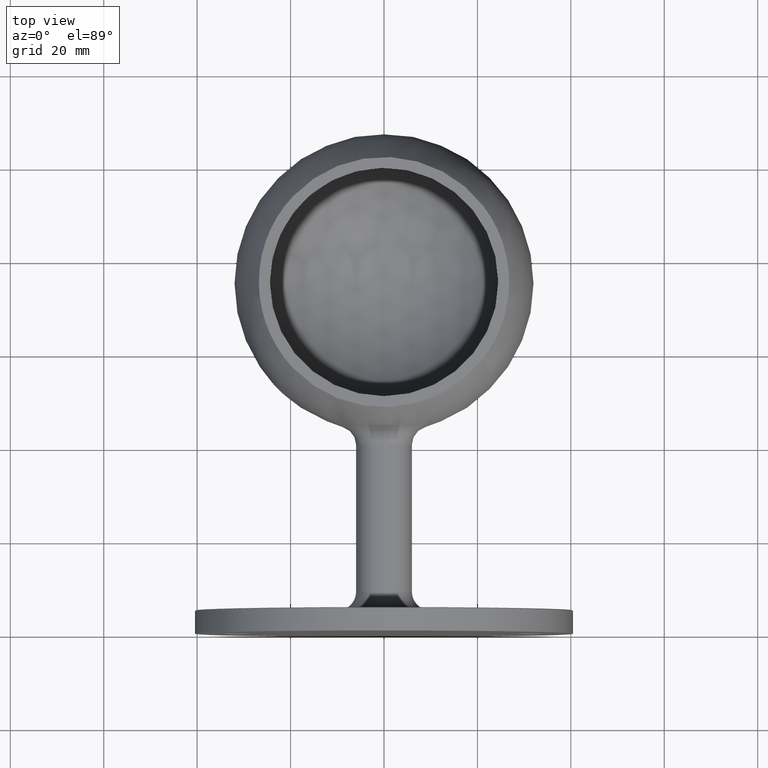
[diagram: clean part render]
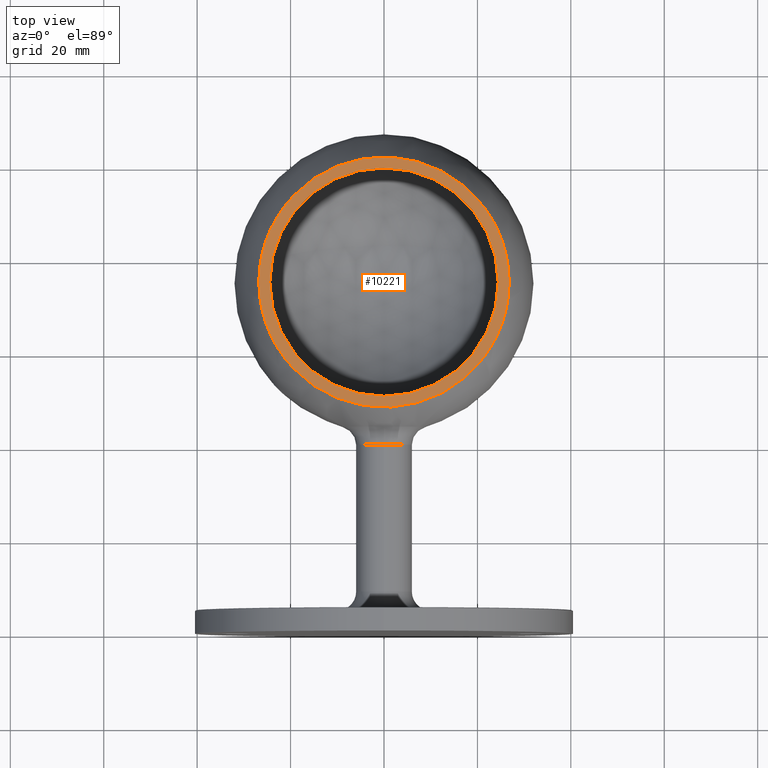
[diagram: same view with one face highlighted and labeled with its STEP entity id]
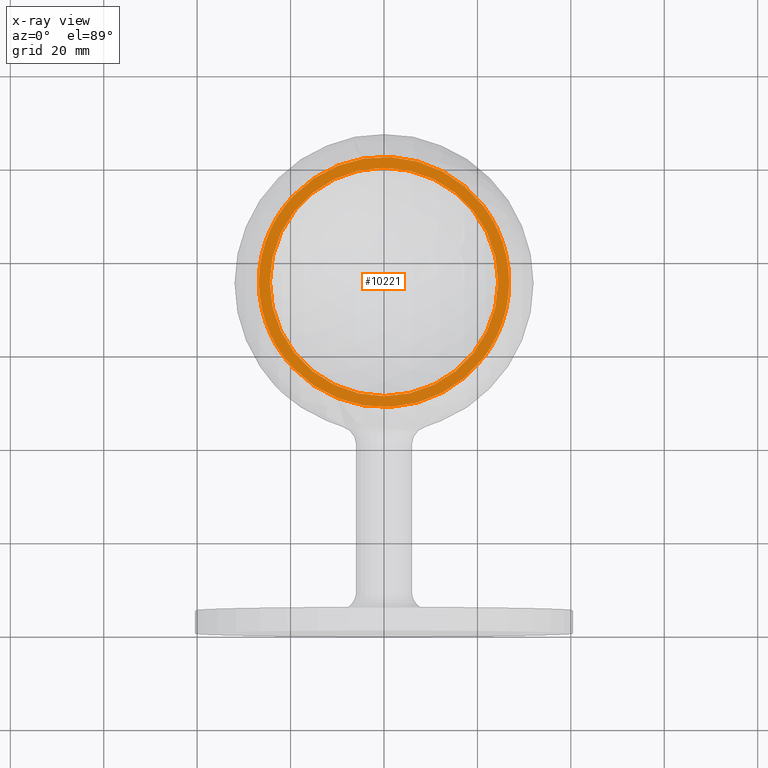
[diagram: x-ray of the same camera — body ghosted, the highlighted face saturated]
A machine part, top view. The second image highlights one B-rep face of the part: STEP entity #10221.
The next image is the same camera in x-ray: the body ghosted, the highlighted face saturated — about 0% of this face is hidden behind the body in this view.
In plain terms, the highlighted planar face has unit normal (0, 0, -1).
Its self-contained STEP definition (entity closure, byte-faithful):
#835 = PLANE ( 'NONE',  #4692 ) ;
#938 = CARTESIAN_POINT ( 'NONE',  ( 26.79085664923762522, 75.00000000000000000, 17.50000000000000711 ) ) ;
#1488 = DIRECTION ( 'NONE',  ( 1.000000000000000000, 0.000000000000000000, 0.000000000000000000 ) ) ;
#2020 = ORIENTED_EDGE ( 'NONE', *, *, #9167, .T. ) ;
#2376 = AXIS2_PLACEMENT_3D ( 'NONE', #9119, #10003, #1488 ) ;
#2449 = CIRCLE ( 'NONE', #2376, 26.79085664923762522 ) ;
#2799 = AXIS2_PLACEMENT_3D ( 'NONE', #6616, #4006, #10887 ) ;
#3137 = VERTEX_POINT ( 'NONE', #8722 ) ;
#4006 = DIRECTION ( 'NONE',  ( -0.000000000000000000, -0.000000000000000000, 1.000000000000000000 ) ) ;
#4692 = AXIS2_PLACEMENT_3D ( 'NONE', #7633, #4994, #9186 ) ;
#4889 = VERTEX_POINT ( 'NONE', #938 ) ;
#4994 = DIRECTION ( 'NONE',  ( 0.000000000000000000, 0.000000000000000000, -1.000000000000000000 ) ) ;
#5041 = EDGE_LOOP ( 'NONE', ( #2020 ) ) ;
#5228 = ORIENTED_EDGE ( 'NONE', *, *, #5830, .F. ) ;
#5830 = EDGE_CURVE ( 'NONE', #3137, #3137, #7685, .T. ) ;
#6616 = CARTESIAN_POINT ( 'NONE',  ( 0.000000000000000000, 75.00000000000000000, 17.50000000000000000 ) ) ;
#7633 = CARTESIAN_POINT ( 'NONE',  ( 0.000000000000000000, 99.45000000000000284, 17.50000000000000355 ) ) ;
#7685 = CIRCLE ( 'NONE', #2799, 24.44999999999999929 ) ;
#8722 = CARTESIAN_POINT ( 'NONE',  ( 24.44999999999999929, 75.00000000000000000, 17.50000000000000000 ) ) ;
#9119 = CARTESIAN_POINT ( 'NONE',  ( 0.000000000000000000, 75.00000000000000000, 17.50000000000000711 ) ) ;
#9167 = EDGE_CURVE ( 'NONE', #4889, #4889, #2449, .T. ) ;
#9186 = DIRECTION ( 'NONE',  ( -1.000000000000000000, 0.000000000000000000, -0.000000000000000000 ) ) ;
#9357 = FACE_OUTER_BOUND ( 'NONE', #5041, .T. ) ;
#9748 = FACE_BOUND ( 'NONE', #11088, .T. ) ;
#10003 = DIRECTION ( 'NONE',  ( -0.000000000000000000, -0.000000000000000000, 1.000000000000000000 ) ) ;
#10221 = ADVANCED_FACE ( 'NONE', ( #9748, #9357 ), #835, .F. ) ;
#10887 = DIRECTION ( 'NONE',  ( 1.000000000000000000, 0.000000000000000000, 0.000000000000000000 ) ) ;
#11088 = EDGE_LOOP ( 'NONE', ( #5228 ) ) ;